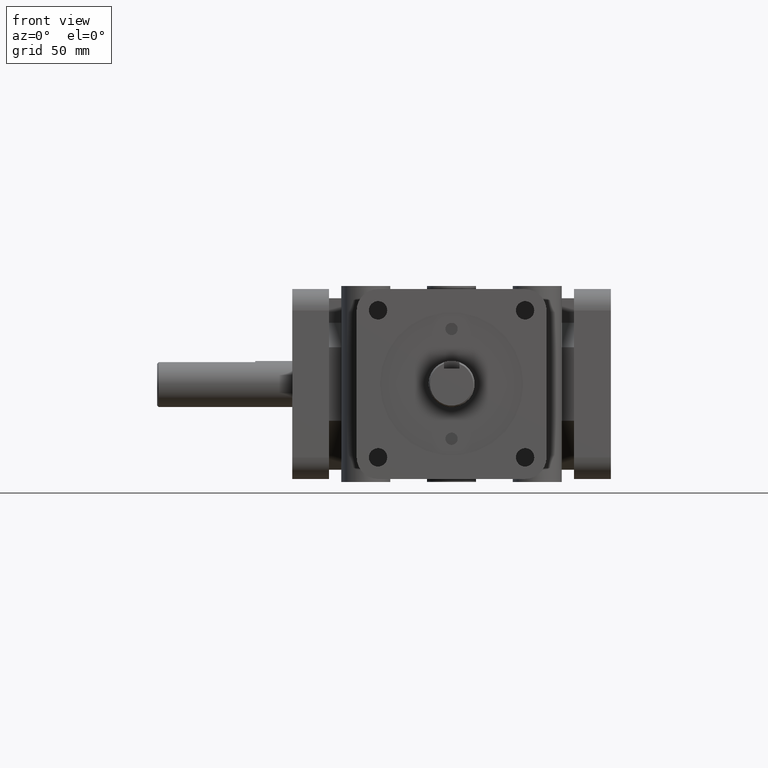
[diagram: clean part render]
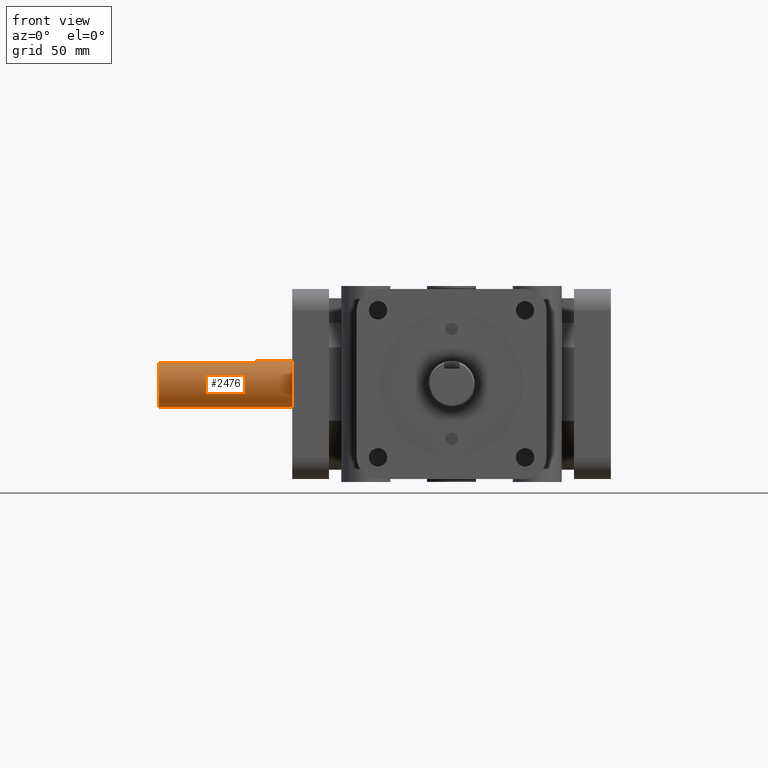
[diagram: same view with one face highlighted and labeled with its STEP entity id]
A machine part, front view. The second image highlights one B-rep face of the part: STEP entity #2476.
In plain terms, the highlighted cylindrical surface (bore or boss wall) has radius 12 mm, axis along (-1, 0, 0).
Its self-contained STEP definition (entity closure, byte-faithful):
#79=CYLINDRICAL_SURFACE('',#2663,12.);
#139=CIRCLE('',#2662,12.);
#140=CIRCLE('',#2664,12.);
#141=CIRCLE('',#2665,12.);
#142=CIRCLE('',#2666,12.);
#246=FACE_OUTER_BOUND('',#391,.T.);
#391=EDGE_LOOP('',(#1774,#1775,#1776,#1777,#1778,#1779,#1780,#1781));
#607=LINE('',#3782,#857);
#611=LINE('',#3795,#861);
#617=LINE('',#3814,#867);
#857=VECTOR('',#3021,1.);
#861=VECTOR('',#3027,1.);
#867=VECTOR('',#3043,12.);
#1117=VERTEX_POINT('',#3780);
#1118=VERTEX_POINT('',#3781);
#1122=VERTEX_POINT('',#3793);
#1123=VERTEX_POINT('',#3794);
#1127=VERTEX_POINT('',#3811);
#1128=VERTEX_POINT('',#3813);
#1365=EDGE_CURVE('',#1117,#1118,#607,.T.);
#1370=EDGE_CURVE('',#1122,#1123,#611,.T.);
#1377=EDGE_CURVE('',#1123,#1117,#139,.T.);
#1378=EDGE_CURVE('',#1127,#1118,#140,.T.);
#1379=EDGE_CURVE('',#1127,#1128,#617,.T.);
#1380=EDGE_CURVE('',#1128,#1128,#141,.T.);
#1381=EDGE_CURVE('',#1122,#1127,#142,.T.);
#1774=ORIENTED_EDGE('',*,*,#1365,.T.);
#1775=ORIENTED_EDGE('',*,*,#1378,.F.);
#1776=ORIENTED_EDGE('',*,*,#1379,.T.);
#1777=ORIENTED_EDGE('',*,*,#1380,.F.);
#1778=ORIENTED_EDGE('',*,*,#1379,.F.);
#1779=ORIENTED_EDGE('',*,*,#1381,.F.);
#1780=ORIENTED_EDGE('',*,*,#1370,.T.);
#1781=ORIENTED_EDGE('',*,*,#1377,.T.);
#2476=ADVANCED_FACE('',(#246),#79,.T.);
#2662=AXIS2_PLACEMENT_3D('',#3809,#3037,#3038);
#2663=AXIS2_PLACEMENT_3D('',#3810,#3039,#3040);
#2664=AXIS2_PLACEMENT_3D('',#3812,#3041,#3042);
#2665=AXIS2_PLACEMENT_3D('',#3815,#3044,#3045);
#2666=AXIS2_PLACEMENT_3D('',#3816,#3046,#3047);
#3021=DIRECTION('',(-1.,3.82858892158944E-16,0.));
#3027=DIRECTION('',(1.,-3.82858892158944E-16,0.));
#3037=DIRECTION('center_axis',(1.,-3.82858892158944E-16,0.));
#3038=DIRECTION('ref_axis',(-3.82858892158944E-16,-1.,0.));
#3039=DIRECTION('center_axis',(-1.,3.82858892158944E-16,0.));
#3040=DIRECTION('ref_axis',(-3.82858892158944E-16,-1.,0.));
#3041=DIRECTION('center_axis',(-1.,3.82858892158944E-16,0.));
#3042=DIRECTION('ref_axis',(3.82858892158944E-16,1.,0.));
#3043=DIRECTION('',(1.,-3.82858892158944E-16,0.));
#3044=DIRECTION('center_axis',(1.,-4.56193326618001E-32,-2.28096663309E-32));
#3045=DIRECTION('ref_axis',(-4.56193326618001E-32,-1.,-8.73288358196352E-48));
#3046=DIRECTION('center_axis',(-1.,3.82858892158944E-16,0.));
#3047=DIRECTION('ref_axis',(3.82858892158944E-16,1.,0.));
#3780=CARTESIAN_POINT('',(-101.75,148.4,11.3137084989848));
#3781=CARTESIAN_POINT('',(-151.788,148.4,11.3137084989848));
#3782=CARTESIAN_POINT('',(-81.026,148.4,11.3137084989848));
#3793=CARTESIAN_POINT('',(-151.788,156.4,11.3137084989848));
#3794=CARTESIAN_POINT('',(-101.75,156.4,11.3137084989848));
#3795=CARTESIAN_POINT('',(-81.026,156.4,11.3137084989848));
#3809=CARTESIAN_POINT('Origin',(-101.75,152.4,0.));
#3810=CARTESIAN_POINT('Origin',(-81.026,152.4,0.));
#3811=CARTESIAN_POINT('',(-151.788,164.4,-1.46957615897682E-15));
#3812=CARTESIAN_POINT('Origin',(-151.788,152.4,0.));
#3813=CARTESIAN_POINT('',(-81.026,164.4,-1.46957615897682E-15));
#3814=CARTESIAN_POINT('',(-81.026,164.4,-1.46957615897682E-15));
#3815=CARTESIAN_POINT('Origin',(-81.026,152.4,0.));
#3816=CARTESIAN_POINT('Origin',(-151.788,152.4,0.));